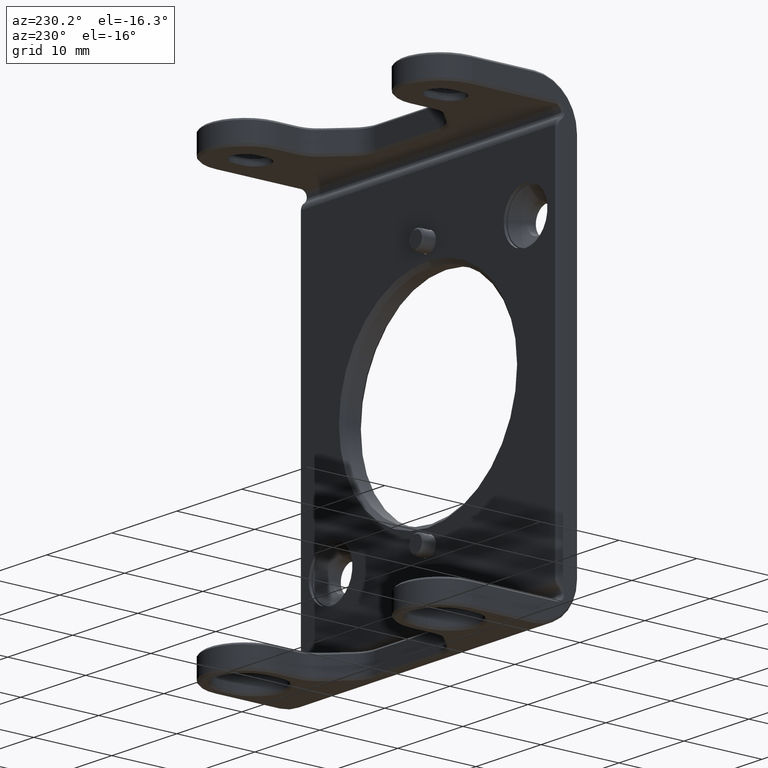
[diagram: clean part render]
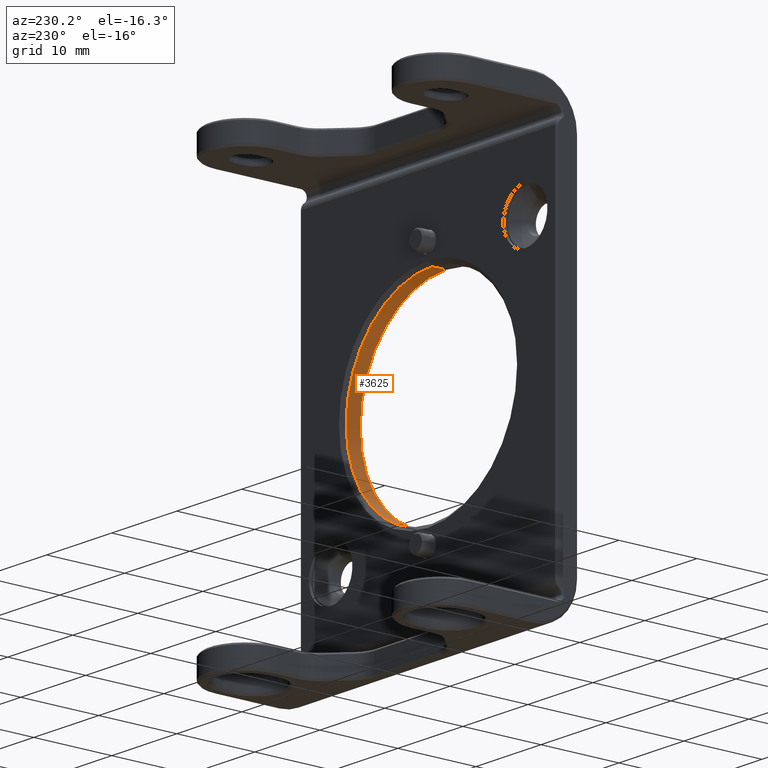
[diagram: same view with one face highlighted and labeled with its STEP entity id]
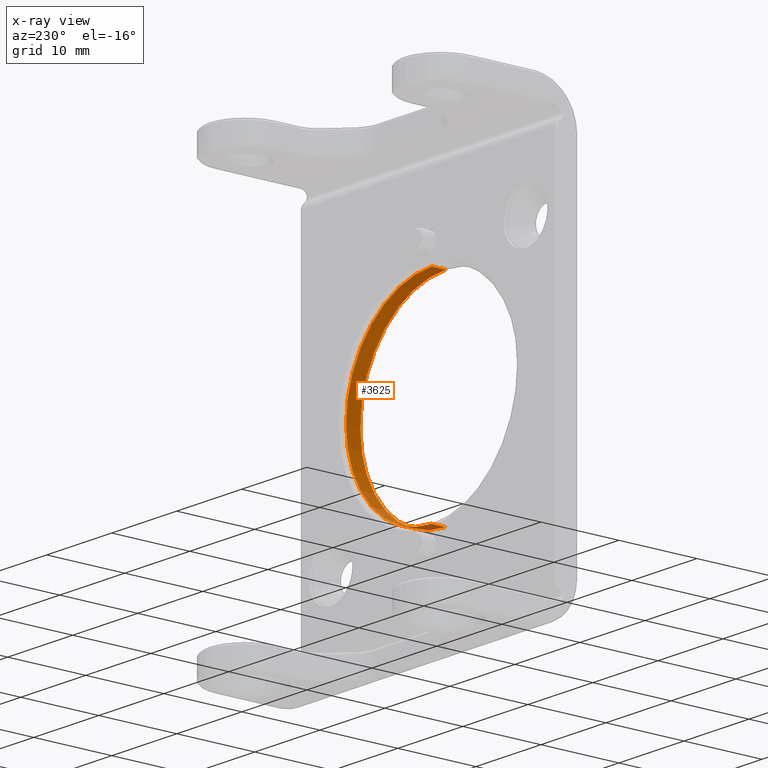
[diagram: x-ray of the same camera — body ghosted, the highlighted face saturated]
A machine part, auxiliary view. The second image highlights one B-rep face of the part: STEP entity #3625.
The next image is the same camera in x-ray: the body ghosted, the highlighted face saturated — about 0% of this face is hidden behind the body in this view.
In plain terms, the highlighted cylindrical surface (partial cylindrical patch) has radius 13.2 mm, axis along (-0, 1, -0).
Its self-contained STEP definition (entity closure, byte-faithful):
#294 = DIRECTION ( 'NONE',  ( -0.000000000000000000, 1.000000000000000000, -0.000000000000000000 ) ) ;
#307 = CIRCLE ( 'NONE', #8314, 13.20000000000000107 ) ;
#422 = DIRECTION ( 'NONE',  ( -0.000000000000000000, 1.000000000000000000, -0.000000000000000000 ) ) ;
#924 = ORIENTED_EDGE ( 'NONE', *, *, #2875, .F. ) ;
#1488 = CARTESIAN_POINT ( 'NONE',  ( 0.000000000000000000, 2.299999999999996270, 13.20000000000000107 ) ) ;
#1558 = VERTEX_POINT ( 'NONE', #1488 ) ;
#2168 = CARTESIAN_POINT ( 'NONE',  ( 0.000000000000000000, 2.299999999999996270, 0.000000000000000000 ) ) ;
#2245 = CARTESIAN_POINT ( 'NONE',  ( 1.616533774874506401E-15, 2.299999999999996270, -13.20000000000000107 ) ) ;
#2397 = DIRECTION ( 'NONE',  ( -0.000000000000000000, -1.000000000000000000, -0.000000000000000000 ) ) ;
#2798 = VECTOR ( 'NONE', #294, 1000.000000000000000 ) ;
#2875 = EDGE_CURVE ( 'NONE', #6079, #5134, #8227, .T. ) ;
#3044 = ORIENTED_EDGE ( 'NONE', *, *, #7867, .T. ) ;
#3174 = CIRCLE ( 'NONE', #6595, 13.20000000000000107 ) ;
#3199 = CARTESIAN_POINT ( 'NONE',  ( 0.000000000000000000, 0.4999999999999855671, 0.000000000000000000 ) ) ;
#3625 = ADVANCED_FACE ( 'NONE', ( #7246 ), #7297, .F. ) ;
#3820 = CARTESIAN_POINT ( 'NONE',  ( 0.000000000000000000, -6.071532165918824830E-15, 13.20000000000000107 ) ) ;
#4334 = CARTESIAN_POINT ( 'NONE',  ( 1.616533774874506401E-15, -6.071532165918824830E-15, -13.20000000000000107 ) ) ;
#4431 = DIRECTION ( 'NONE',  ( 0.000000000000000000, 0.000000000000000000, 1.000000000000000000 ) ) ;
#4998 = LINE ( 'NONE', #3820, #8425 ) ;
#5134 = VERTEX_POINT ( 'NONE', #2245 ) ;
#5162 = AXIS2_PLACEMENT_3D ( 'NONE', #6431, #422, #4431 ) ;
#5708 = EDGE_CURVE ( 'NONE', #6079, #5782, #3174, .T. ) ;
#5782 = VERTEX_POINT ( 'NONE', #6536 ) ;
#6079 = VERTEX_POINT ( 'NONE', #8359 ) ;
#6221 = DIRECTION ( 'NONE',  ( 0.000000000000000000, 1.000000000000000000, 0.000000000000000000 ) ) ;
#6431 = CARTESIAN_POINT ( 'NONE',  ( 0.000000000000000000, -6.071532165918824830E-15, 0.000000000000000000 ) ) ;
#6536 = CARTESIAN_POINT ( 'NONE',  ( 1.647149944853189399E-15, 0.4999999999999855671, 13.20000000000000107 ) ) ;
#6540 = EDGE_CURVE ( 'NONE', #1558, #5134, #307, .T. ) ;
#6570 = ORIENTED_EDGE ( 'NONE', *, *, #6540, .T. ) ;
#6595 = AXIS2_PLACEMENT_3D ( 'NONE', #3199, #2397, #7202 ) ;
#7140 = ORIENTED_EDGE ( 'NONE', *, *, #5708, .T. ) ;
#7202 = DIRECTION ( 'NONE',  ( 0.000000000000000000, 0.000000000000000000, 1.000000000000000000 ) ) ;
#7246 = FACE_OUTER_BOUND ( 'NONE', #7506, .T. ) ;
#7297 = CYLINDRICAL_SURFACE ( 'NONE', #5162, 13.20000000000000107 ) ;
#7506 = EDGE_LOOP ( 'NONE', ( #924, #7140, #3044, #6570 ) ) ;
#7867 = EDGE_CURVE ( 'NONE', #5782, #1558, #4998, .T. ) ;
#7955 = DIRECTION ( 'NONE',  ( -0.000000000000000000, 1.000000000000000000, -0.000000000000000000 ) ) ;
#8163 = DIRECTION ( 'NONE',  ( 0.000000000000000000, 0.000000000000000000, -1.000000000000000000 ) ) ;
#8227 = LINE ( 'NONE', #4334, #2798 ) ;
#8314 = AXIS2_PLACEMENT_3D ( 'NONE', #2168, #6221, #8163 ) ;
#8359 = CARTESIAN_POINT ( 'NONE',  ( 0.000000000000000000, 0.4999999999999855671, -13.20000000000000107 ) ) ;
#8425 = VECTOR ( 'NONE', #7955, 1000.000000000000000 ) ;